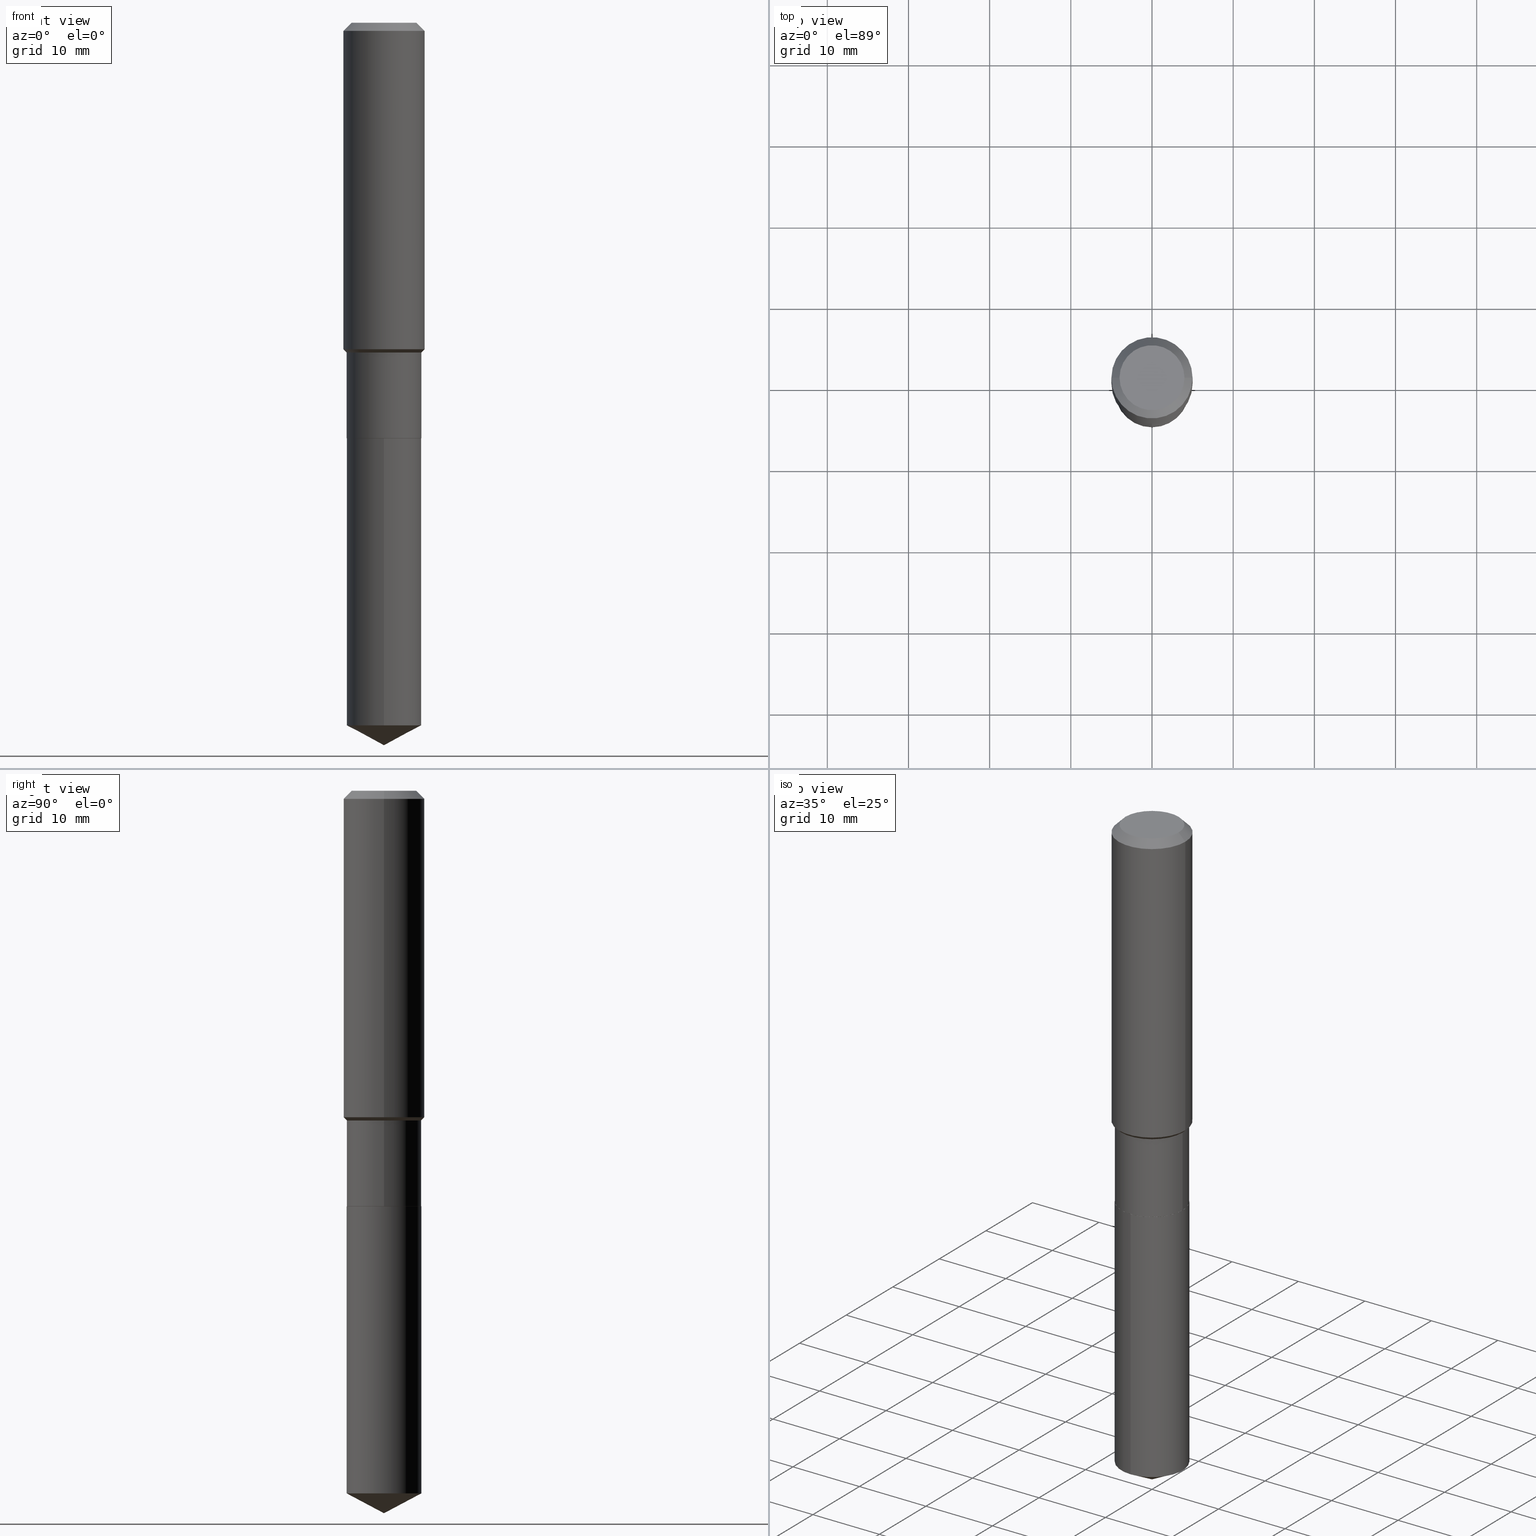
[diagram: canonical four-view strip — front | top / right | iso, engineering-drawing reading convention]
A machine part, canonical four-view strip (front | top / right | iso — engineering-drawing reading convention). The complete STEP part file that produces these views, byte-faithful:
ISO-10303-21;
HEADER;
FILE_DESCRIPTION (( 'STEP AP203' ),
    '1' );
FILE_NAME ('64662.STEP',
    '2024-04-24T18:39:08',
    ( '' ),
    ( '' ),
    'SwSTEP 2.0',
    'SolidWorks 2023',
    '' );
FILE_SCHEMA (( 'CONFIG_CONTROL_DESIGN' ));
ENDSEC;

DATA;
#1 = VECTOR ( 'NONE', #194, 39.37007874015748143 ) ;
#2 = CYLINDRICAL_SURFACE ( 'NONE', #8, 0.1968500000000001082 ) ;
#3 = CARTESIAN_POINT ( 'NONE',  ( 3.872277581153853552E-29, -5.528586125991177772E-15, -1.583449999999999580 ) ) ;
#4 = VERTEX_POINT ( 'NONE', #476 ) ;
#5 = FACE_OUTER_BOUND ( 'NONE', #129, .T. ) ;
#6 = LENGTH_MEASURE_WITH_UNIT ( LENGTH_MEASURE( 0.02539999999999999897 ), #153 );
#7 = AXIS2_PLACEMENT_3D ( 'NONE', #60, #363, #101 ) ;
#8 = AXIS2_PLACEMENT_3D ( 'NONE', #427, #308, #312 ) ;
#9 = APPROVAL_PERSON_ORGANIZATION ( #380, #165, #343 ) ;
#10 = VERTEX_POINT ( 'NONE', #20 ) ;
#11 = EDGE_CURVE ( 'NONE', #314, #201, #87, .T. ) ;
#12 = DIRECTION ( 'NONE',  ( -2.445468806185136597E-29, 3.491481338843145583E-15, 1.000000000000000000 ) ) ;
#13 = EDGE_CURVE ( 'NONE', #374, #465, #192, .T. ) ;
#14 = AXIS2_PLACEMENT_3D ( 'NONE', #381, #377, #155 ) ;
#15 = ORIENTED_EDGE ( 'NONE', *, *, #33, .T. ) ;
#16 = LOCAL_TIME ( 14, 39, 8.000000000000000000, #67 ) ;
#17 = DIRECTION ( 'NONE',  ( -2.445468806185136597E-29, 3.491481338843145583E-15, 1.000000000000000000 ) ) ;
#18 = DIRECTION ( 'NONE',  ( -0.7071067811865450192, 2.468850131082230634E-15, -0.7071067811865500152 ) ) ;
#19 = DATE_AND_TIME ( #65, #348 ) ;
#20 = CARTESIAN_POINT ( 'NONE',  ( 8.569029575460565047E-29, -1.223329820189975982E-14, -3.503899999999999793 ) ) ;
#21 = ADVANCED_FACE ( 'NONE', ( #24 ), #227, .T. ) ;
#22 = PERSON_AND_ORGANIZATION ( #447, #408 ) ;
#23 = EDGE_CURVE ( 'NONE', #81, #259, #168, .T. ) ;
#24 = FACE_OUTER_BOUND ( 'NONE', #473, .T. ) ;
#25 = AXIS2_PLACEMENT_3D ( 'NONE', #378, #32, #166 ) ;
#26 = DIRECTION ( 'NONE',  ( -6.982962677686266711E-15, -1.000000000000000000, 3.016949744521549444E-15 ) ) ;
#27 = DIRECTION ( 'NONE',  ( 0.000000000000000000, 0.000000000000000000, 1.000000000000000000 ) ) ;
#28 = CIRCLE ( 'NONE', #212, 0.1968500000000000250 ) ;
#29 = ORIENTED_EDGE ( 'NONE', *, *, #69, .T. ) ;
#30 = DIRECTION ( 'NONE',  ( -2.445468806185136597E-29, 3.491481338843145583E-15, 1.000000000000000000 ) ) ;
#31 = EDGE_CURVE ( 'NONE', #81, #162, #292, .T. ) ;
#32 = DIRECTION ( 'NONE',  ( -2.445569101703977201E-29, 3.491337709951699296E-15, 1.000000000000000000 ) ) ;
#33 = EDGE_CURVE ( 'NONE', #162, #253, #218, .T. ) ;
#34 = CARTESIAN_POINT ( 'NONE',  ( 4.929331472627378640E-29, -7.037778934706127166E-15, -2.015699999999999381 ) ) ;
#35 = AXIS2_PLACEMENT_3D ( 'NONE', #358, #289, #93 ) ;
#36 = EDGE_CURVE ( 'NONE', #324, #253, #110, .T. ) ;
#37 = VECTOR ( 'NONE', #420, 39.37007874015748143 ) ;
#38 = APPROVAL_STATUS ( 'not_yet_approved' ) ;
#39 = LINE ( 'NONE', #266, #140 ) ;
#40 = DIRECTION ( 'NONE',  ( -0.7071067811865474617, 7.493145998870352582E-15, 0.7071067811865474617 ) ) ;
#41 = CALENDAR_DATE ( 2024, 24, 4 ) ;
#42 = DIRECTION ( 'NONE',  ( -2.445468806185136877E-29, 3.491481338843145188E-15, 1.000000000000000000 ) ) ;
#43 = DATE_TIME_ROLE ( 'classification_date' ) ;
#44 = DIRECTION ( 'NONE',  ( 1.000000000000000000, -6.982962677686265922E-15, 0.000000000000000000 ) ) ;
#45 = CONICAL_SURFACE ( 'NONE', #25, 74.04434902938383800, 1.082104136236488268 ) ;
#46 = CARTESIAN_POINT ( 'NONE',  ( 4.929331472627379200E-29, -7.037778934706127955E-15, -2.015699999999999825 ) ) ;
#47 = CONICAL_SURFACE ( 'NONE', #342, 0.1806000000000000105, 0.7853981633977896726 ) ;
#48 = ORIENTED_EDGE ( 'NONE', *, *, #390, .F. ) ;
#49 = DIRECTION ( 'NONE',  ( -2.445468806185136597E-29, 3.491481338843145583E-15, 1.000000000000000000 ) ) ;
#50 = ORIENTED_EDGE ( 'NONE', *, *, #382, .T. ) ;
#51 = VECTOR ( 'NONE', #18, 39.37007874015748143 ) ;
#52 = ORIENTED_EDGE ( 'NONE', *, *, #305, .T. ) ;
#53 = ORIENTED_EDGE ( 'NONE', *, *, #33, .F. ) ;
#54 = ADVANCED_FACE ( 'NONE', ( #111 ), #425, .T. ) ;
#55 = ORIENTED_EDGE ( 'NONE', *, *, #172, .T. ) ;
#56 = ORIENTED_EDGE ( 'NONE', *, *, #172, .F. ) ;
#57 = DIMENSIONAL_EXPONENTS ( 1.000000000000000000, 0.000000000000000000, 0.000000000000000000, 0.000000000000000000, 0.000000000000000000, 0.000000000000000000, 0.000000000000000000 ) ;
#58 = VECTOR ( 'NONE', #136, 39.37007874015748143 ) ;
#59 = FACE_OUTER_BOUND ( 'NONE', #396, .T. ) ;
#60 = CARTESIAN_POINT ( 'NONE',  ( 4.929331472627378640E-29, -7.037778934706127166E-15, -2.015699999999999381 ) ) ;
#61 = ORIENTED_EDGE ( 'NONE', *, *, #316, .T. ) ;
#62 = APPLICATION_PROTOCOL_DEFINITION ( 'international standard', 'config_control_design', 1994, #70 ) ;
#63 = AXIS2_PLACEMENT_3D ( 'NONE', #383, #106, #191 ) ;
#64 = CARTESIAN_POINT ( 'NONE',  ( -0.1968500000000000250, 1.237136582792286225E-15, -0.03937000000000029365 ) ) ;
#65 = CALENDAR_DATE ( 2024, 24, 4 ) ;
#66 = CARTESIAN_POINT ( 'NONE',  ( 4.928108738224286960E-29, -7.036033194036706451E-15, -2.015199999999999658 ) ) ;
#67 = COORDINATED_UNIVERSAL_TIME_OFFSET ( 5, 0, .BEHIND. ) ;
#68 = DIRECTION ( 'NONE',  ( 1.000000000000000000, -6.982962677686265922E-15, 4.876176775795935793E-29 ) ) ;
#69 = EDGE_CURVE ( 'NONE', #10, #357, #341, .T. ) ;
#70 = APPLICATION_CONTEXT ( 'configuration controlled 3d designs of mechanical parts and assemblies' ) ;
#71 = CARTESIAN_POINT ( 'NONE',  ( -0.1968500000000001082, 1.398703375343757985E-15, -9.682923725166787881E-30 ) ) ;
#72 = DIRECTION ( 'NONE',  ( -2.445468806185136597E-29, 3.491481338843145583E-15, 1.000000000000000000 ) ) ;
#73 = AXIS2_PLACEMENT_3D ( 'NONE', #131, #333, #481 ) ;
#74 = AXIS2_PLACEMENT_3D ( 'NONE', #489, #156, #163 ) ;
#75 = CARTESIAN_POINT ( 'NONE',  ( 0.000000000000000000, 0.000000000000000000, 0.000000000000000000 ) ) ;
#76 = EDGE_CURVE ( 'NONE', #247, #162, #148, .T. ) ;
#77 = EDGE_CURVE ( 'NONE', #10, #398, #306, .T. ) ;
#78 = DIRECTION ( 'NONE',  ( -2.445468806185136597E-29, 3.491481338843145583E-15, 1.000000000000000000 ) ) ;
#79 = UNCERTAINTY_MEASURE_WITH_UNIT (LENGTH_MEASURE( 1.000000000000000082E-05 ), #126, 'distance_accuracy_value', 'NONE');
#80 = DIRECTION ( 'NONE',  ( -6.982962677686266711E-15, -1.000000000000000000, 3.016949744521549444E-15 ) ) ;
#81 = VERTEX_POINT ( 'NONE', #225 ) ;
#82 = MANIFOLD_SOLID_BREP ( 'Body-Move/Copy2[1]', #372 ) ;
#83 = AXIS2_PLACEMENT_3D ( 'NONE', #415, #477, #145 ) ;
#84 = DIRECTION ( 'NONE',  ( -2.445569101703977201E-29, 3.491337709951699296E-15, 1.000000000000000000 ) ) ;
#85 = ORIENTED_EDGE ( 'NONE', *, *, #11, .F. ) ;
#86 = ORIENTED_EDGE ( 'NONE', *, *, #147, .F. ) ;
#87 = CIRCLE ( 'NONE', #35, 0.1810999999999999832 ) ;
#88 = CIRCLE ( 'NONE', #373, 0.1811000000000000110 ) ;
#89 = ORIENTED_EDGE ( 'NONE', *, *, #124, .T. ) ;
#90 = CIRCLE ( 'NONE', #83, 0.1574800000000000089 ) ;
#91 = CC_DESIGN_DATE_AND_TIME_ASSIGNMENT ( #226, #43, ( #271 ) ) ;
#92 = EDGE_LOOP ( 'NONE', ( #366, #144, #55, #317 ) ) ;
#93 = DIRECTION ( 'NONE',  ( 1.000000000000000000, -6.982962677686267499E-15, 0.000000000000000000 ) ) ;
#94 = CARTESIAN_POINT ( 'NONE',  ( 9.627810689950954155E-31, -1.374596203102556547E-16, -0.03937000000000029365 ) ) ;
#95 = ADVANCED_FACE ( 'NONE', ( #264 ), #229, .T. ) ;
#96 = CARTESIAN_POINT ( 'NONE',  ( 9.627810689950954155E-31, -1.374596203102556547E-16, -0.03937000000000029365 ) ) ;
#97 = EDGE_CURVE ( 'NONE', #4, #314, #419, .T. ) ;
#98 = LOCAL_TIME ( 14, 39, 8.000000000000000000, #137 ) ;
#99 = DIRECTION ( 'NONE',  ( -2.445569101703977201E-29, 3.491337709951699296E-15, 1.000000000000000000 ) ) ;
#100 = PRODUCT_DEFINITION ( 'UNKNOWN', '', #220, #204 ) ;
#101 = DIRECTION ( 'NONE',  ( 1.000000000000000000, -6.982962677686263555E-15, 0.000000000000000000 ) ) ;
#102 = CARTESIAN_POINT ( 'NONE',  ( 4.929331472627379200E-29, -7.037778934706127955E-15, -2.015699999999999825 ) ) ;
#103 = EDGE_LOOP ( 'NONE', ( #207, #315, #246, #15 ) ) ;
#104 = CARTESIAN_POINT ( 'NONE',  ( 1.286792894461590621E-15, 0.1810999999999929888, -2.015700000000000269 ) ) ;
#105 = AXIS2_PLACEMENT_3D ( 'NONE', #66, #30, #490 ) ;
#106 = DIRECTION ( 'NONE',  ( -2.445569101703977201E-29, 3.491337709951699296E-15, 1.000000000000000000 ) ) ;
#107 = EDGE_CURVE ( 'NONE', #182, #4, #318, .T. ) ;
#108 = CONICAL_SURFACE ( 'NONE', #299, 0.1810999999999999832, 0.7853981633974482790 ) ;
#109 = DIRECTION ( 'NONE',  ( 2.445468806185136597E-29, -3.491481338843145583E-15, -1.000000000000000000 ) ) ;
#110 = LINE ( 'NONE', #456, #394 ) ;
#111 = FACE_OUTER_BOUND ( 'NONE', #469, .T. ) ;
#112 = EDGE_CURVE ( 'NONE', #398, #357, #387, .T. ) ;
#113 = DIRECTION ( 'NONE',  ( -2.445468806185136597E-29, 3.491481338843145583E-15, 1.000000000000000000 ) ) ;
#114 = AXIS2_PLACEMENT_3D ( 'NONE', #96, #410, #274 ) ;
#115 = AXIS2_PLACEMENT_3D ( 'NONE', #296, #263, #68 ) ;
#116 = COORDINATED_UNIVERSAL_TIME_OFFSET ( 5, 0, .BEHIND. ) ;
#117 = FACE_OUTER_BOUND ( 'NONE', #393, .T. ) ;
#118 = AXIS2_PLACEMENT_3D ( 'NONE', #478, #27, #150 ) ;
#119 = DIRECTION ( 'NONE',  ( -2.445468806185136877E-29, 3.491481338843145188E-15, 1.000000000000000000 ) ) ;
#120 = CARTESIAN_POINT ( 'NONE',  ( 0.1574800000000000089, -1.284169937930321189E-15, 3.855188123724205385E-18 ) ) ;
#121 = ORIENTED_EDGE ( 'NONE', *, *, #23, .T. ) ;
#122 = DIRECTION ( 'NONE',  ( 6.982962677686265922E-15, 1.000000000000000000, -3.491337709951699296E-15 ) ) ;
#123 = ORIENTED_EDGE ( 'NONE', *, *, #147, .T. ) ;
#124 = EDGE_CURVE ( 'NONE', #389, #180, #295, .T. ) ;
#125 = FACE_OUTER_BOUND ( 'NONE', #127, .T. ) ;
#126 =( CONVERSION_BASED_UNIT ( 'INCH', #6 ) LENGTH_UNIT ( ) NAMED_UNIT ( #57 ) );
#127 = EDGE_LOOP ( 'NONE', ( #123, #52, #242, #56 ) ) ;
#128 = ORIENTED_EDGE ( 'NONE', *, *, #482, .T. ) ;
#129 = EDGE_LOOP ( 'NONE', ( #249, #256, #284, #173 ) ) ;
#130 = AXIS2_PLACEMENT_3D ( 'NONE', #167, #84, #80 ) ;
#131 = CARTESIAN_POINT ( 'NONE',  ( -9.427742298522567634E-47, 1.346031739168368355E-32, 3.855188123715870730E-18 ) ) ;
#132 =( NAMED_UNIT ( * ) SI_UNIT ( $, .STERADIAN. ) SOLID_ANGLE_UNIT ( ) );
#133 = PRODUCT ( '64662', '64662', '', ( #369 ) ) ;
#134 = ORIENTED_EDGE ( 'NONE', *, *, #429, .T. ) ;
#135 = ADVANCED_FACE ( 'NONE', ( #417 ), #184, .T. ) ;
#136 = DIRECTION ( 'NONE',  ( 0.7071067811865450192, -7.319954787623246579E-15, -0.7071067811865500152 ) ) ;
#137 = COORDINATED_UNIVERSAL_TIME_OFFSET ( 5, 0, .BEHIND. ) ;
#138 = EDGE_LOOP ( 'NONE', ( #208, #89 ) ) ;
#139 = CC_DESIGN_PERSON_AND_ORGANIZATION_ASSIGNMENT ( #188, #483, ( #100 ) ) ;
#140 = VECTOR ( 'NONE', #301, 39.37007874015748143 ) ;
#141 = ORIENTED_EDGE ( 'NONE', *, *, #423, .T. ) ;
#142 = DIRECTION ( 'NONE',  ( -2.445468806185136597E-29, 3.491481338843145583E-15, 1.000000000000000000 ) ) ;
#143 = PERSON_AND_ORGANIZATION_ROLE ( 'design_owner' ) ;
#144 = ORIENTED_EDGE ( 'NONE', *, *, #11, .T. ) ;
#145 = DIRECTION ( 'NONE',  ( 1.000000000000000000, -6.982962677686265922E-15, 4.876223630392693006E-29 ) ) ;
#146 = DATE_AND_TIME ( #221, #98 ) ;
#147 = EDGE_CURVE ( 'NONE', #201, #314, #174, .T. ) ;
#148 = LINE ( 'NONE', #71, #250 ) ;
#149 = CC_DESIGN_PERSON_AND_ORGANIZATION_ASSIGNMENT ( #418, #157, ( #271 ) ) ;
#150 = DIRECTION ( 'NONE',  ( 1.000000000000000000, 0.000000000000000000, 0.000000000000000000 ) ) ;
#151 = AXIS2_PLACEMENT_3D ( 'NONE', #222, #113, #44 ) ;
#152 = CARTESIAN_POINT ( 'NONE',  ( 0.1806000000000000105, -8.298901994296266309E-15, -2.015699999999999381 ) ) ;
#153 =( LENGTH_UNIT ( ) NAMED_UNIT ( * ) SI_UNIT ( $, .METRE. ) );
#154 = APPROVAL_PERSON_ORGANIZATION ( #22, #245, #257 ) ;
#155 = DIRECTION ( 'NONE',  ( -6.982962677686267499E-15, -1.000000000000000000, 3.541896320645546669E-15 ) ) ;
#156 = DIRECTION ( 'NONE',  ( -2.445569101703977201E-29, 3.491337709951699296E-15, 1.000000000000000000 ) ) ;
#157 = PERSON_AND_ORGANIZATION_ROLE ( 'classification_officer' ) ;
#158 = CC_DESIGN_DATE_AND_TIME_ASSIGNMENT ( #146, #252, ( #100 ) ) ;
#159 = CARTESIAN_POINT ( 'NONE',  ( -0.1806000000000000105, -5.754538753923386353E-15, -2.015699999999999381 ) ) ;
#160 = AXIS2_PLACEMENT_3D ( 'NONE', #183, #142, #411 ) ;
#161 = CARTESIAN_POINT ( 'NONE',  ( 0.1968500000000000250, -1.512055823412797189E-15, -0.03937000000000029365 ) ) ;
#162 = VERTEX_POINT ( 'NONE', #384 ) ;
#163 = DIRECTION ( 'NONE',  ( -6.982962677686266711E-15, -1.000000000000000000, 3.016949744521549444E-15 ) ) ;
#164 = ORIENTED_EDGE ( 'NONE', *, *, #297, .T. ) ;
#165 = APPROVAL ( #38, 'UNSPECIFIED' ) ;
#166 = DIRECTION ( 'NONE',  ( -6.982962677686267499E-15, -1.000000000000000000, 3.541896320645546669E-15 ) ) ;
#167 = CARTESIAN_POINT ( 'NONE',  ( 4.929331472627379200E-29, -7.037778934706127955E-15, -2.015699999999999825 ) ) ;
#168 = CIRCLE ( 'NONE', #73, 0.1574800000000000089 ) ;
#169 = AXIS2_PLACEMENT_3D ( 'NONE', #231, #78, #459 ) ;
#170 = EDGE_CURVE ( 'NONE', #324, #247, #269, .T. ) ;
#171 = ORIENTED_EDGE ( 'NONE', *, *, #107, .T. ) ;
#172 = EDGE_CURVE ( 'NONE', #201, #374, #270, .T. ) ;
#173 = ORIENTED_EDGE ( 'NONE', *, *, #124, .F. ) ;
#174 = CIRCLE ( 'NONE', #105, 0.1810999999999999832 ) ;
#175 = CARTESIAN_POINT ( 'NONE',  ( 4.929331472627378640E-29, -7.037778934706127166E-15, -2.015699999999999381 ) ) ;
#176 = DIRECTION ( 'NONE',  ( -2.445468806185136597E-29, 3.491481338843145583E-15, 1.000000000000000000 ) ) ;
#177 =( GEOMETRIC_REPRESENTATION_CONTEXT ( 3 ) GLOBAL_UNCERTAINTY_ASSIGNED_CONTEXT ( ( #79 ) ) GLOBAL_UNIT_ASSIGNED_CONTEXT ( ( #126, #471, #132 ) ) REPRESENTATION_CONTEXT ( 'NONE', 'WORKASPACE' ) );
#178 = DIRECTION ( 'NONE',  ( 2.438088387897960049E-29, -3.491481338843145188E-15, -1.000000000000000000 ) ) ;
#179 = ADVANCED_FACE ( 'NONE', ( #486 ), #359, .T. ) ;
#180 = VERTEX_POINT ( 'NONE', #379 ) ;
#181 = CARTESIAN_POINT ( 'NONE',  ( 0.1806000000000000105, -8.298901994296266309E-15, -2.015699999999999381 ) ) ;
#182 = VERTEX_POINT ( 'NONE', #152 ) ;
#183 = CARTESIAN_POINT ( 'NONE',  ( 3.910793714851269512E-29, -5.583576957077957107E-15, -1.599199999999999733 ) ) ;
#184 = CONICAL_SURFACE ( 'NONE', #14, 74.04434902938383800, 1.082104136236488268 ) ;
#185 = ORIENTED_EDGE ( 'NONE', *, *, #76, .T. ) ;
#186 = CC_DESIGN_SECURITY_CLASSIFICATION ( #271, ( #220 ) ) ;
#187 = CARTESIAN_POINT ( 'NONE',  ( 0.1810999999999999832, -6.848191498006940046E-15, -1.599199999999999733 ) ) ;
#188 = PERSON_AND_ORGANIZATION ( #447, #408 ) ;
#189 = ORIENTED_EDGE ( 'NONE', *, *, #399, .F. ) ;
#190 = PERSON_AND_ORGANIZATION ( #447, #408 ) ;
#191 = DIRECTION ( 'NONE',  ( -6.982962677686266711E-15, -1.000000000000000000, 3.016949744521549444E-15 ) ) ;
#192 = CIRCLE ( 'NONE', #463, 0.1810999999999999832 ) ;
#193 = CIRCLE ( 'NONE', #261, 0.1811000000000000110 ) ;
#194 = DIRECTION ( 'NONE',  ( -0.7071067811867889352, 7.493145998871226640E-15, 0.7071067811863060992 ) ) ;
#195 = FACE_OUTER_BOUND ( 'NONE', #467, .T. ) ;
#196 = SHAPE_DEFINITION_REPRESENTATION ( #430, #400 ) ;
#197 = DIRECTION ( 'NONE',  ( 1.000000000000000000, -6.982962677686266711E-15, 4.876176775795935793E-29 ) ) ;
#198 = CARTESIAN_POINT ( 'NONE',  ( 8.333337256122308322E-29, -1.189739780563839754E-14, -3.407607421926106994 ) ) ;
#199 = PLANE ( 'NONE',  #115 ) ;
#200 = DIRECTION ( 'NONE',  ( 2.445569101703976921E-29, -3.491337709951699296E-15, -1.000000000000000000 ) ) ;
#201 = VERTEX_POINT ( 'NONE', #300 ) ;
#202 = DIRECTION ( 'NONE',  ( -2.445468806185136597E-29, 3.491481338843145583E-15, 1.000000000000000000 ) ) ;
#203 = ORIENTED_EDGE ( 'NONE', *, *, #482, .F. ) ;
#204 = DESIGN_CONTEXT ( 'detailed design', #370, 'design' ) ;
#205 = CIRCLE ( 'NONE', #480, 0.1806000000000000105 ) ;
#206 = CC_DESIGN_PERSON_AND_ORGANIZATION_ASSIGNMENT ( #337, #485, ( #220 ) ) ;
#207 = ORIENTED_EDGE ( 'NONE', *, *, #429, .F. ) ;
#208 = ORIENTED_EDGE ( 'NONE', *, *, #376, .T. ) ;
#209 = ORIENTED_EDGE ( 'NONE', *, *, #13, .T. ) ;
#210 = CIRCLE ( 'NONE', #160, 0.1810999999999999832 ) ;
#211 = CARTESIAN_POINT ( 'NONE',  ( -4.713871149261283817E-47, 6.730158695841841775E-33, 1.927594061857935365E-18 ) ) ;
#212 = AXIS2_PLACEMENT_3D ( 'NONE', #94, #12, #216 ) ;
#213 = CC_DESIGN_PERSON_AND_ORGANIZATION_ASSIGNMENT ( #365, #326, ( #220 ) ) ;
#214 = EDGE_LOOP ( 'NONE', ( #403, #392 ) ) ;
#215 = EDGE_LOOP ( 'NONE', ( #209, #445, #466, #446 ) ) ;
#216 = DIRECTION ( 'NONE',  ( 1.000000000000000000, -6.982962677686265922E-15, 0.000000000000000000 ) ) ;
#217 = ORIENTED_EDGE ( 'NONE', *, *, #399, .T. ) ;
#218 = CIRCLE ( 'NONE', #114, 0.1968500000000000250 ) ;
#219 = ORIENTED_EDGE ( 'NONE', *, *, #423, .F. ) ;
#220 = PRODUCT_DEFINITION_FORMATION_WITH_SPECIFIED_SOURCE ( 'ANY', '', #133, .NOT_KNOWN. ) ;
#221 = CALENDAR_DATE ( 2024, 24, 4 ) ;
#222 = CARTESIAN_POINT ( 'NONE',  ( 3.872277581153853552E-29, -5.528586125991177772E-15, -1.583449999999999580 ) ) ;
#223 = SECURITY_CLASSIFICATION_LEVEL ( 'unclassified' ) ;
#224 = EDGE_CURVE ( 'NONE', #465, #247, #453, .T. ) ;
#225 = CARTESIAN_POINT ( 'NONE',  ( -0.1574800000000000089, 1.168406772637159618E-15, 3.855188123707939751E-18 ) ) ;
#226 = DATE_AND_TIME ( #41, #16 ) ;
#227 = CONICAL_SURFACE ( 'NONE', #7, 0.1806000000000000105, 0.7853981633977896726 ) ;
#228 = VECTOR ( 'NONE', #298, 39.37007874015748143 ) ;
#229 = CYLINDRICAL_SURFACE ( 'NONE', #169, 0.1810999999999999832 ) ;
#230 = DIRECTION ( 'NONE',  ( 1.000000000000000000, -6.982962677686263555E-15, 0.000000000000000000 ) ) ;
#231 = CARTESIAN_POINT ( 'NONE',  ( 0.000000000000000000, 0.000000000000000000, 0.000000000000000000 ) ) ;
#232 = DIRECTION ( 'NONE',  ( -2.445569101703977201E-29, 3.491337709951699296E-15, 1.000000000000000000 ) ) ;
#233 = ADVANCED_FACE ( 'NONE', ( #195 ), #344, .T. ) ;
#234 = CC_DESIGN_PERSON_AND_ORGANIZATION_ASSIGNMENT ( #255, #143, ( #133 ) ) ;
#235 = CARTESIAN_POINT ( 'NONE',  ( -0.1810999999999999832, -5.023012181095790067E-15, -2.015199999999999658 ) ) ;
#236 = CARTESIAN_POINT ( 'NONE',  ( 0.000000000000000000, 0.000000000000000000, 0.000000000000000000 ) ) ;
#237 = AXIS2_PLACEMENT_3D ( 'NONE', #336, #484, #422 ) ;
#238 = ORIENTED_EDGE ( 'NONE', *, *, #36, .F. ) ;
#239 = VECTOR ( 'NONE', #444, 39.37007874015748143 ) ;
#240 = CC_DESIGN_APPROVAL ( #245, ( #100 ) ) ;
#241 = FACE_OUTER_BOUND ( 'NONE', #438, .T. ) ;
#242 = ORIENTED_EDGE ( 'NONE', *, *, #13, .F. ) ;
#243 = ORIENTED_EDGE ( 'NONE', *, *, #297, .F. ) ;
#244 = ADVANCED_FACE ( 'NONE', ( #460 ), #2, .T. ) ;
#245 = APPROVAL ( #475, 'UNSPECIFIED' ) ;
#246 = ORIENTED_EDGE ( 'NONE', *, *, #31, .T. ) ;
#247 = VERTEX_POINT ( 'NONE', #464 ) ;
#248 = CARTESIAN_POINT ( 'NONE',  ( -0.1810999999999999832, -5.023012181095790067E-15, -1.599199999999999733 ) ) ;
#249 = ORIENTED_EDGE ( 'NONE', *, *, #436, .F. ) ;
#250 = VECTOR ( 'NONE', #42, 39.37007874015748143 ) ;
#251 = LINE ( 'NONE', #104, #434 ) ;
#252 = DATE_TIME_ROLE ( 'creation_date' ) ;
#253 = VERTEX_POINT ( 'NONE', #161 ) ;
#254 = FACE_OUTER_BOUND ( 'NONE', #409, .T. ) ;
#255 = PERSON_AND_ORGANIZATION ( #447, #408 ) ;
#256 = ORIENTED_EDGE ( 'NONE', *, *, #112, .T. ) ;
#257 = APPROVAL_ROLE ( '' ) ;
#258 = MANIFOLD_SOLID_BREP ( 'Body-Move/Copy2[2]', #328 ) ;
#259 = VERTEX_POINT ( 'NONE', #120 ) ;
#260 = DIRECTION ( 'NONE',  ( -2.445569101703977201E-29, 3.491337709951699296E-15, 1.000000000000000000 ) ) ;
#261 = AXIS2_PLACEMENT_3D ( 'NONE', #198, #347, #454 ) ;
#262 = DIRECTION ( 'NONE',  ( -6.165590087286839185E-15, -0.8829475928589269884, 0.4694715627858903617 ) ) ;
#263 = DIRECTION ( 'NONE',  ( -2.438088387897960049E-29, 3.491481338843145188E-15, 1.000000000000000000 ) ) ;
#264 = FACE_OUTER_BOUND ( 'NONE', #92, .T. ) ;
#265 = ADVANCED_FACE ( 'NONE', ( #5 ), #276, .T. ) ;
#266 = CARTESIAN_POINT ( 'NONE',  ( -0.1810999999999999832, 1.286792894461541317E-15, -8.908191448451633036E-30 ) ) ;
#267 = CARTESIAN_POINT ( 'NONE',  ( 8.569033120969269851E-29, -1.223329820189975982E-14, -3.503899999999999793 ) ) ;
#268 = CARTESIAN_POINT ( 'NONE',  ( 0.1968500000000002192, -6.903182329093720169E-15, -1.583449999999999580 ) ) ;
#269 = CIRCLE ( 'NONE', #151, 0.1968500000000002192 ) ;
#270 = LINE ( 'NONE', #339, #228 ) ;
#271 = SECURITY_CLASSIFICATION ( '', '', #223 ) ;
#272 = CALENDAR_DATE ( 2024, 24, 4 ) ;
#273 = FACE_OUTER_BOUND ( 'NONE', #214, .T. ) ;
#274 = DIRECTION ( 'NONE',  ( 1.000000000000000000, -6.982962677686265922E-15, 0.000000000000000000 ) ) ;
#275 = DIRECTION ( 'NONE',  ( 1.000000000000000000, -6.982962677686265922E-15, 0.000000000000000000 ) ) ;
#276 = CYLINDRICAL_SURFACE ( 'NONE', #130, 0.1811000000000000110 ) ;
#277 = ORIENTED_EDGE ( 'NONE', *, *, #76, .F. ) ;
#278 = AXIS2_PLACEMENT_3D ( 'NONE', #34, #487, #346 ) ;
#279 = EDGE_LOOP ( 'NONE', ( #277, #353, #401, #53 ) ) ;
#280 = EDGE_CURVE ( 'NONE', #247, #324, #414, .T. ) ;
#281 = CARTESIAN_POINT ( 'NONE',  ( 0.1810999999999999832, -6.848191498006940046E-15, -1.599199999999999733 ) ) ;
#282 = ORIENTED_EDGE ( 'NONE', *, *, #77, .F. ) ;
#283 = CARTESIAN_POINT ( 'NONE',  ( 3.910793714851269512E-29, -5.583576957077957107E-15, -1.599199999999999733 ) ) ;
#284 = ORIENTED_EDGE ( 'NONE', *, *, #390, .T. ) ;
#285 = AXIS2_PLACEMENT_3D ( 'NONE', #236, #310, #350 ) ;
#286 = PLANE ( 'NONE',  #320 ) ;
#287 = ADVANCED_FACE ( 'NONE', ( #432 ), #388, .F. ) ;
#288 = CC_DESIGN_APPROVAL ( #488, ( #220 ) ) ;
#289 = DIRECTION ( 'NONE',  ( -2.445468806185136597E-29, 3.491481338843145583E-15, 1.000000000000000000 ) ) ;
#290 = ADVANCED_FACE ( 'NONE', ( #125 ), #391, .T. ) ;
#291 = ADVANCED_FACE ( 'NONE', ( #241 ), #421, .T. ) ;
#292 = LINE ( 'NONE', #64, #51 ) ;
#293 = DIRECTION ( 'NONE',  ( 1.000000000000000000, -6.982962677686267499E-15, 0.000000000000000000 ) ) ;
#294 = CARTESIAN_POINT ( 'NONE',  ( 8.333337256122308322E-29, -1.189739780563839754E-14, -3.407607421926106994 ) ) ;
#295 = CIRCLE ( 'NONE', #63, 0.1811000000000000110 ) ;
#296 = CARTESIAN_POINT ( 'NONE',  ( 7.058472365498860368E-29, -3.988727992940315729E-15, -2.015699999999999381 ) ) ;
#297 = EDGE_CURVE ( 'NONE', #357, #398, #193, .T. ) ;
#298 = DIRECTION ( 'NONE',  ( -2.445468806185136877E-29, 3.491481338843145188E-15, 1.000000000000000000 ) ) ;
#299 = AXIS2_PLACEMENT_3D ( 'NONE', #283, #319, #293 ) ;
#300 = CARTESIAN_POINT ( 'NONE',  ( 0.1810999999999999832, -8.300647734965688602E-15, -2.015199999999999658 ) ) ;
#301 = DIRECTION ( 'NONE',  ( -2.445468806185136877E-29, 3.491481338843145188E-15, 1.000000000000000000 ) ) ;
#302 = CARTESIAN_POINT ( 'NONE',  ( -0.1810999999999999832, -4.296784062616415395E-15, -1.599199999999999733 ) ) ;
#303 = DATE_AND_TIME ( #272, #397 ) ;
#304 = DIRECTION ( 'NONE',  ( -2.445468806185136597E-29, 3.491481338843145583E-15, 1.000000000000000000 ) ) ;
#305 = EDGE_CURVE ( 'NONE', #314, #465, #39, .T. ) ;
#306 = LINE ( 'NONE', #267, #37 ) ;
#307 = VECTOR ( 'NONE', #439, 39.37007874015748143 ) ;
#308 = DIRECTION ( 'NONE',  ( -2.445468806185136597E-29, 3.491481338843145583E-15, 1.000000000000000000 ) ) ;
#309 = ORIENTED_EDGE ( 'NONE', *, *, #31, .F. ) ;
#310 = DIRECTION ( 'NONE',  ( -2.445468806185136597E-29, 3.491481338843145583E-15, 1.000000000000000000 ) ) ;
#311 = EDGE_LOOP ( 'NONE', ( #282, #29, #437 ) ) ;
#312 = DIRECTION ( 'NONE',  ( 1.000000000000000000, -6.982962677686266711E-15, 4.876176775795935793E-29 ) ) ;
#313 = AXIS2_PLACEMENT_3D ( 'NONE', #75, #72, #197 ) ;
#314 = VERTEX_POINT ( 'NONE', #235 ) ;
#315 = ORIENTED_EDGE ( 'NONE', *, *, #23, .F. ) ;
#316 = EDGE_CURVE ( 'NONE', #4, #182, #205, .T. ) ;
#317 = ORIENTED_EDGE ( 'NONE', *, *, #382, .F. ) ;
#318 = CIRCLE ( 'NONE', #278, 0.1806000000000000105 ) ;
#319 = DIRECTION ( 'NONE',  ( -2.445468806185136597E-29, 3.491481338843145583E-15, 1.000000000000000000 ) ) ;
#320 = AXIS2_PLACEMENT_3D ( 'NONE', #211, #178, #406 ) ;
#321 = ORIENTED_EDGE ( 'NONE', *, *, #97, .F. ) ;
#322 = LINE ( 'NONE', #187, #451 ) ;
#323 = APPLICATION_PROTOCOL_DEFINITION ( 'international standard', 'config_control_design', 1994, #370 ) ;
#324 = VERTEX_POINT ( 'NONE', #268 ) ;
#325 = CARTESIAN_POINT ( 'NONE',  ( -1.264614540928933635E-15, -0.1811000000000070609, -2.015699999999999381 ) ) ;
#326 = PERSON_AND_ORGANIZATION_ROLE ( 'design_supplier' ) ;
#327 = ORIENTED_EDGE ( 'NONE', *, *, #405, .T. ) ;
#328 = CLOSED_SHELL ( 'NONE', ( #426, #179, #54, #385, #290, #95, #291, #244, #331, #472, #338, #21 ) ) ;
#329 = VECTOR ( 'NONE', #40, 39.37007874015748854 ) ;
#330 = CARTESIAN_POINT ( 'NONE',  ( 1.286792894461624739E-15, 0.1810999999999929888, -2.015700000000000269 ) ) ;
#331 = ADVANCED_FACE ( 'NONE', ( #349 ), #395, .T. ) ;
#332 = APPROVAL_PERSON_ORGANIZATION ( #190, #488, #407 ) ;
#333 = DIRECTION ( 'NONE',  ( -2.445468806185136597E-29, 3.491481338843145583E-15, 1.000000000000000000 ) ) ;
#334 = DIRECTION ( 'NONE',  ( 0.7071067811865474617, -2.468850131082256666E-15, 0.7071067811865474617 ) ) ;
#335 = APPROVAL_DATE_TIME ( #361, #245 ) ;
#336 = CARTESIAN_POINT ( 'NONE',  ( 9.627810689950954155E-31, -1.374596203102556547E-16, -0.03937000000000029365 ) ) ;
#337 = PERSON_AND_ORGANIZATION ( #447, #408 ) ;
#338 = ADVANCED_FACE ( 'NONE', ( #273 ), #199, .F. ) ;
#339 = CARTESIAN_POINT ( 'NONE',  ( 0.1810999999999999832, -1.264614540928982742E-15, 8.830756140966438813E-30 ) ) ;
#340 = CARTESIAN_POINT ( 'NONE',  ( 4.929331472627378640E-29, -7.037778934706127166E-15, -2.015699999999999381 ) ) ;
#341 = LINE ( 'NONE', #455, #468 ) ;
#342 = AXIS2_PLACEMENT_3D ( 'NONE', #175, #17, #448 ) ;
#343 = APPROVAL_ROLE ( '' ) ;
#344 = CYLINDRICAL_SURFACE ( 'NONE', #74, 0.1811000000000000110 ) ;
#345 = CARTESIAN_POINT ( 'NONE',  ( 9.627810689950954155E-31, -1.374596203102556547E-16, -0.03937000000000029365 ) ) ;
#346 = DIRECTION ( 'NONE',  ( 1.000000000000000000, -6.982962677686263555E-15, 0.000000000000000000 ) ) ;
#347 = DIRECTION ( 'NONE',  ( -2.445569101703977201E-29, 3.491337709951699296E-15, 1.000000000000000000 ) ) ;
#348 = LOCAL_TIME ( 14, 39, 8.000000000000000000, #416 ) ;
#349 = FACE_OUTER_BOUND ( 'NONE', #103, .T. ) ;
#350 = DIRECTION ( 'NONE',  ( 1.000000000000000000, -6.982962677686266711E-15, 4.876176775795935793E-29 ) ) ;
#351 = ORIENTED_EDGE ( 'NONE', *, *, #97, .T. ) ;
#352 = DIRECTION ( 'NONE',  ( 1.000000000000000000, -6.982962677686267499E-15, 0.000000000000000000 ) ) ;
#353 = ORIENTED_EDGE ( 'NONE', *, *, #280, .T. ) ;
#354 = AXIS2_PLACEMENT_3D ( 'NONE', #461, #49, #352 ) ;
#355 = EDGE_LOOP ( 'NONE', ( #219, #134, #217, #309 ) ) ;
#356 = PRODUCT_RELATED_PRODUCT_CATEGORY ( 'detail', '', ( #133 ) ) ;
#357 = VERTEX_POINT ( 'NONE', #458 ) ;
#358 = CARTESIAN_POINT ( 'NONE',  ( 4.928108738224286960E-29, -7.036033194036706451E-15, -2.015199999999999658 ) ) ;
#359 = CONICAL_SURFACE ( 'NONE', #237, 0.1968500000000000250, 0.7853981633974447263 ) ;
#360 = CARTESIAN_POINT ( 'NONE',  ( 1.286792894461624542E-15, 0.1810999999999881316, -3.407607421926107438 ) ) ;
#361 = DATE_AND_TIME ( #412, #452 ) ;
#362 = CC_DESIGN_APPROVAL ( #165, ( #271 ) ) ;
#363 = DIRECTION ( 'NONE',  ( -2.445468806185136597E-29, 3.491481338843145583E-15, 1.000000000000000000 ) ) ;
#364 = LINE ( 'NONE', #181, #239 ) ;
#365 = PERSON_AND_ORGANIZATION ( #447, #408 ) ;
#366 = ORIENTED_EDGE ( 'NONE', *, *, #305, .F. ) ;
#367 = ADVANCED_FACE ( 'NONE', ( #117 ), #45, .T. ) ;
#368 = LINE ( 'NONE', #325, #307 ) ;
#369 = MECHANICAL_CONTEXT ( 'NONE', #70, 'mechanical' ) ;
#370 = APPLICATION_CONTEXT ( 'configuration controlled 3d designs of mechanical parts and assemblies' ) ;
#371 = ORIENTED_EDGE ( 'NONE', *, *, #69, .F. ) ;
#372 = CLOSED_SHELL ( 'NONE', ( #233, #367, #135, #265, #287 ) ) ;
#373 = AXIS2_PLACEMENT_3D ( 'NONE', #102, #99, #26 ) ;
#374 = VERTEX_POINT ( 'NONE', #281 ) ;
#375 = APPROVAL_DATE_TIME ( #19, #488 ) ;
#376 = EDGE_CURVE ( 'NONE', #180, #389, #88, .T. ) ;
#377 = DIRECTION ( 'NONE',  ( -2.445569101703977201E-29, 3.491337709951699296E-15, 1.000000000000000000 ) ) ;
#378 = CARTESIAN_POINT ( 'NONE',  ( -8.771342068879854609E-28, 1.252206528346232482E-13, 35.86617874015747987 ) ) ;
#379 = CARTESIAN_POINT ( 'NONE',  ( -1.264614540928933635E-15, -0.1811000000000070609, -2.015699999999999381 ) ) ;
#380 = PERSON_AND_ORGANIZATION ( #447, #408 ) ;
#381 = CARTESIAN_POINT ( 'NONE',  ( -8.771342068879854609E-28, 1.252206528346232482E-13, 35.86617874015747987 ) ) ;
#382 = EDGE_CURVE ( 'NONE', #465, #374, #210, .T. ) ;
#383 = CARTESIAN_POINT ( 'NONE',  ( 4.929331472627379200E-29, -7.037778934706127955E-15, -2.015699999999999825 ) ) ;
#384 = CARTESIAN_POINT ( 'NONE',  ( -0.1968500000000000250, -1.434319497806958297E-15, -0.03937000000000029365 ) ) ;
#385 = ADVANCED_FACE ( 'NONE', ( #402 ), #108, .T. ) ;
#386 = DIRECTION ( 'NONE',  ( -1.000000000000000000, 6.982962677686265922E-15, 0.000000000000000000 ) ) ;
#387 = CIRCLE ( 'NONE', #443, 0.1811000000000000110 ) ;
#388 = PLANE ( 'NONE',  #404 ) ;
#389 = VERTEX_POINT ( 'NONE', #330 ) ;
#390 = EDGE_CURVE ( 'NONE', #357, #180, #368, .T. ) ;
#391 = CYLINDRICAL_SURFACE ( 'NONE', #285, 0.1810999999999999832 ) ;
#392 = ORIENTED_EDGE ( 'NONE', *, *, #316, .F. ) ;
#393 = EDGE_LOOP ( 'NONE', ( #371, #440, #243 ) ) ;
#394 = VECTOR ( 'NONE', #119, 39.37007874015748143 ) ;
#395 = CONICAL_SURFACE ( 'NONE', #457, 0.1968500000000000250, 0.7853981633974447263 ) ;
#396 = EDGE_LOOP ( 'NONE', ( #171, #351, #86, #203 ) ) ;
#397 = LOCAL_TIME ( 14, 39, 8.000000000000000000, #116 ) ;
#398 = VERTEX_POINT ( 'NONE', #360 ) ;
#399 = EDGE_CURVE ( 'NONE', #253, #162, #28, .T. ) ;
#400 = ADVANCED_BREP_SHAPE_REPRESENTATION ( '64662', ( #82, #258, #118 ), #177 ) ;
#401 = ORIENTED_EDGE ( 'NONE', *, *, #36, .T. ) ;
#402 = FACE_OUTER_BOUND ( 'NONE', #215, .T. ) ;
#403 = ORIENTED_EDGE ( 'NONE', *, *, #107, .F. ) ;
#404 = AXIS2_PLACEMENT_3D ( 'NONE', #46, #200, #122 ) ;
#405 = EDGE_CURVE ( 'NONE', #374, #324, #322, .T. ) ;
#406 = DIRECTION ( 'NONE',  ( -1.000000000000000000, 6.982962677686265922E-15, -4.876176775795935793E-29 ) ) ;
#407 = APPROVAL_ROLE ( '' ) ;
#408 = ORGANIZATION ( 'UNSPECIFIED', 'UNSPECIFIED', '' ) ;
#409 = EDGE_LOOP ( 'NONE', ( #121, #141 ) ) ;
#410 = DIRECTION ( 'NONE',  ( -2.445468806185136597E-29, 3.491481338843145583E-15, 1.000000000000000000 ) ) ;
#411 = DIRECTION ( 'NONE',  ( 1.000000000000000000, -6.982962677686267499E-15, 0.000000000000000000 ) ) ;
#412 = CALENDAR_DATE ( 2024, 24, 4 ) ;
#413 = CARTESIAN_POINT ( 'NONE',  ( 3.910793714851269512E-29, -5.583576957077957107E-15, -1.599199999999999733 ) ) ;
#414 = CIRCLE ( 'NONE', #431, 0.1968500000000002192 ) ;
#415 = CARTESIAN_POINT ( 'NONE',  ( -9.427742298522567634E-47, 1.346031739168368355E-32, 3.855188123715870730E-18 ) ) ;
#416 = COORDINATED_UNIVERSAL_TIME_OFFSET ( 5, 0, .BEHIND. ) ;
#417 = FACE_OUTER_BOUND ( 'NONE', #311, .T. ) ;
#418 = PERSON_AND_ORGANIZATION ( #447, #408 ) ;
#419 = LINE ( 'NONE', #159, #1 ) ;
#420 = DIRECTION ( 'NONE',  ( 6.273719981627770810E-15, 0.8829475928589304301, 0.4694715627858842000 ) ) ;
#421 = CONICAL_SURFACE ( 'NONE', #354, 0.1810999999999999832, 0.7853981633974482790 ) ;
#422 = DIRECTION ( 'NONE',  ( -1.000000000000000000, 6.982962677686265922E-15, 0.000000000000000000 ) ) ;
#423 = EDGE_CURVE ( 'NONE', #259, #81, #90, .T. ) ;
#424 = APPROVAL_DATE_TIME ( #303, #165 ) ;
#425 = CYLINDRICAL_SURFACE ( 'NONE', #313, 0.1968500000000001082 ) ;
#426 = ADVANCED_FACE ( 'NONE', ( #59 ), #47, .T. ) ;
#427 = CARTESIAN_POINT ( 'NONE',  ( 0.000000000000000000, 0.000000000000000000, 0.000000000000000000 ) ) ;
#428 = ORIENTED_EDGE ( 'NONE', *, *, #436, .T. ) ;
#429 = EDGE_CURVE ( 'NONE', #259, #253, #474, .T. ) ;
#430 = PRODUCT_DEFINITION_SHAPE ( 'NONE', 'NONE',  #100 ) ;
#431 = AXIS2_PLACEMENT_3D ( 'NONE', #3, #202, #275 ) ;
#432 = FACE_OUTER_BOUND ( 'NONE', #138, .T. ) ;
#433 = ORIENTED_EDGE ( 'NONE', *, *, #170, .T. ) ;
#434 = VECTOR ( 'NONE', #260, 39.37007874015748143 ) ;
#435 = ORIENTED_EDGE ( 'NONE', *, *, #224, .F. ) ;
#436 = EDGE_CURVE ( 'NONE', #398, #389, #251, .T. ) ;
#437 = ORIENTED_EDGE ( 'NONE', *, *, #112, .F. ) ;
#438 = EDGE_LOOP ( 'NONE', ( #435, #50, #327, #462 ) ) ;
#439 = DIRECTION ( 'NONE',  ( -2.445569101703977201E-29, 3.491337709951699296E-15, 1.000000000000000000 ) ) ;
#440 = ORIENTED_EDGE ( 'NONE', *, *, #77, .T. ) ;
#441 = COORDINATED_UNIVERSAL_TIME_OFFSET ( 5, 0, .BEHIND. ) ;
#442 = DIRECTION ( 'NONE',  ( 1.000000000000000000, -6.982962677686267499E-15, 0.000000000000000000 ) ) ;
#443 = AXIS2_PLACEMENT_3D ( 'NONE', #294, #232, #450 ) ;
#444 = DIRECTION ( 'NONE',  ( 0.7071067811867889352, -2.468850131084785360E-15, 0.7071067811863060992 ) ) ;
#445 = ORIENTED_EDGE ( 'NONE', *, *, #224, .T. ) ;
#446 = ORIENTED_EDGE ( 'NONE', *, *, #405, .F. ) ;
#447 = PERSON ( 'UNSPECIFIED', 'UNSPECIFIED', 'UNSPECIFIED', ('UNSPECIFIED'), ('UNSPECIFIED'), ('UNSPECIFIED') ) ;
#448 = DIRECTION ( 'NONE',  ( 1.000000000000000000, -6.982962677686263555E-15, 0.000000000000000000 ) ) ;
#449 = APPROVAL_STATUS ( 'not_yet_approved' ) ;
#450 = DIRECTION ( 'NONE',  ( -6.982962677686266711E-15, -1.000000000000000000, 3.016949744521549444E-15 ) ) ;
#451 = VECTOR ( 'NONE', #334, 39.37007874015748854 ) ;
#452 = LOCAL_TIME ( 14, 39, 8.000000000000000000, #441 ) ;
#453 = LINE ( 'NONE', #302, #329 ) ;
#454 = DIRECTION ( 'NONE',  ( -6.982962677686266711E-15, -1.000000000000000000, 3.016949744521549444E-15 ) ) ;
#455 = CARTESIAN_POINT ( 'NONE',  ( 8.568625244105910624E-29, -1.223387722741273307E-14, -3.503899999999999793 ) ) ;
#456 = CARTESIAN_POINT ( 'NONE',  ( 0.1968500000000001082, -1.374596203102542397E-15, 9.598753983154305062E-30 ) ) ;
#457 = AXIS2_PLACEMENT_3D ( 'NONE', #345, #109, #386 ) ;
#458 = CARTESIAN_POINT ( 'NONE',  ( -1.264614540928899714E-15, -0.1811000000000118904, -3.407607421926106106 ) ) ;
#459 = DIRECTION ( 'NONE',  ( 1.000000000000000000, -6.982962677686266711E-15, 4.876176775795935793E-29 ) ) ;
#460 = FACE_OUTER_BOUND ( 'NONE', #279, .T. ) ;
#461 = CARTESIAN_POINT ( 'NONE',  ( 3.910793714851269512E-29, -5.583576957077957107E-15, -1.599199999999999733 ) ) ;
#462 = ORIENTED_EDGE ( 'NONE', *, *, #280, .F. ) ;
#463 = AXIS2_PLACEMENT_3D ( 'NONE', #413, #176, #442 ) ;
#464 = CARTESIAN_POINT ( 'NONE',  ( -0.1968500000000002192, -4.129882750647417618E-15, -1.583449999999999580 ) ) ;
#465 = VERTEX_POINT ( 'NONE', #248 ) ;
#466 = ORIENTED_EDGE ( 'NONE', *, *, #170, .F. ) ;
#467 = EDGE_LOOP ( 'NONE', ( #164, #428, #479, #48 ) ) ;
#468 = VECTOR ( 'NONE', #262, 39.37007874015748854 ) ;
#469 = EDGE_LOOP ( 'NONE', ( #433, #185, #189, #238 ) ) ;
#470 = CARTESIAN_POINT ( 'NONE',  ( 0.1968500000000000250, -1.487948651171581601E-15, -0.03937000000000029365 ) ) ;
#471 =( NAMED_UNIT ( * ) PLANE_ANGLE_UNIT ( ) SI_UNIT ( $, .RADIAN. ) );
#472 = ADVANCED_FACE ( 'NONE', ( #254 ), #286, .F. ) ;
#473 = EDGE_LOOP ( 'NONE', ( #321, #61, #128, #85 ) ) ;
#474 = LINE ( 'NONE', #470, #58 ) ;
#475 = APPROVAL_STATUS ( 'not_yet_approved' ) ;
#476 = CARTESIAN_POINT ( 'NONE',  ( -0.1806000000000000105, -5.751889526749275152E-15, -2.015699999999999381 ) ) ;
#477 = DIRECTION ( 'NONE',  ( -2.445468806185136597E-29, 3.491481338843145583E-15, 1.000000000000000000 ) ) ;
#478 = CARTESIAN_POINT ( 'NONE',  ( 0.000000000000000000, 0.000000000000000000, 0.000000000000000000 ) ) ;
#479 = ORIENTED_EDGE ( 'NONE', *, *, #376, .F. ) ;
#480 = AXIS2_PLACEMENT_3D ( 'NONE', #340, #304, #230 ) ;
#481 = DIRECTION ( 'NONE',  ( 1.000000000000000000, -6.982962677686265922E-15, 4.876223630392693006E-29 ) ) ;
#482 = EDGE_CURVE ( 'NONE', #182, #201, #364, .T. ) ;
#483 = PERSON_AND_ORGANIZATION_ROLE ( 'creator' ) ;
#484 = DIRECTION ( 'NONE',  ( 2.445468806185136597E-29, -3.491481338843145583E-15, -1.000000000000000000 ) ) ;
#485 = PERSON_AND_ORGANIZATION_ROLE ( 'creator' ) ;
#486 = FACE_OUTER_BOUND ( 'NONE', #355, .T. ) ;
#487 = DIRECTION ( 'NONE',  ( -2.445468806185136597E-29, 3.491481338843145583E-15, 1.000000000000000000 ) ) ;
#488 = APPROVAL ( #449, 'UNSPECIFIED' ) ;
#489 = CARTESIAN_POINT ( 'NONE',  ( 4.929331472627379200E-29, -7.037778934706127955E-15, -2.015699999999999825 ) ) ;
#490 = DIRECTION ( 'NONE',  ( 1.000000000000000000, -6.982962677686267499E-15, 0.000000000000000000 ) ) ;
ENDSEC;
END-ISO-10303-21;
